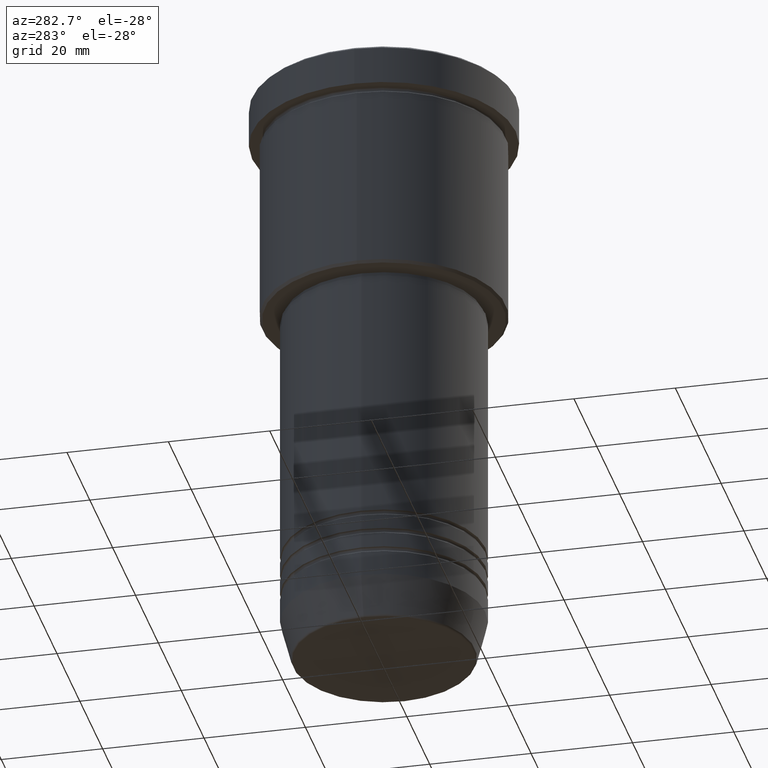
[diagram: clean part render]
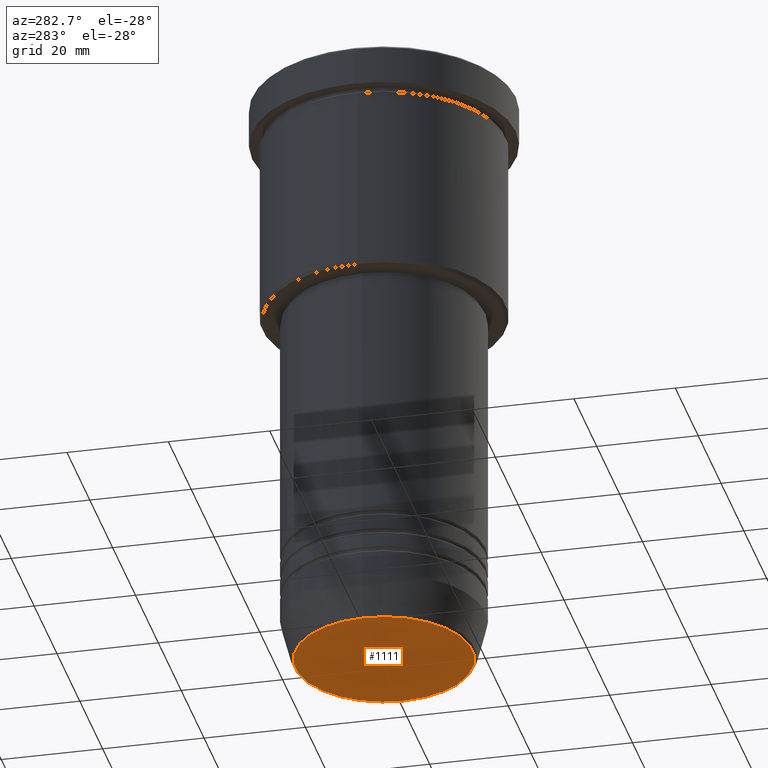
[diagram: same view with one face highlighted and labeled with its STEP entity id]
A machine part, auxiliary view. The second image highlights one B-rep face of the part: STEP entity #1111.
In plain terms, the highlighted planar face has unit normal (0, -0, 1).
Its self-contained STEP definition (entity closure, byte-faithful):
#1 = CARTESIAN_POINT ( 'NONE',  ( 0.000000000000000000, 0.000000000000000000, -120.0000000000000000 ) ) ;
#51 = ORIENTED_EDGE ( 'NONE', *, *, #681, .T. ) ;
#60 = EDGE_CURVE ( 'NONE', #954, #552, #176, .T. ) ;
#176 = CIRCLE ( 'NONE', #1153, 17.47274296656153325 ) ;
#194 = DIRECTION ( 'NONE',  ( 0.000000000000000000, -0.000000000000000000, 1.000000000000000000 ) ) ;
#217 = PLANE ( 'NONE',  #951 ) ;
#240 = DIRECTION ( 'NONE',  ( 1.000000000000000000, 0.000000000000000000, 0.000000000000000000 ) ) ;
#261 = DIRECTION ( 'NONE',  ( 1.000000000000000000, 0.000000000000000000, 0.000000000000000000 ) ) ;
#411 = CARTESIAN_POINT ( 'NONE',  ( -17.47274296656153325, 2.169366823916867714E-15, -120.0000000000000000 ) ) ;
#492 = CARTESIAN_POINT ( 'NONE',  ( 0.000000000000000000, 0.000000000000000000, -120.0000000000000000 ) ) ;
#509 = DIRECTION ( 'NONE',  ( 0.000000000000000000, 0.000000000000000000, -1.000000000000000000 ) ) ;
#519 = ORIENTED_EDGE ( 'NONE', *, *, #60, .T. ) ;
#552 = VERTEX_POINT ( 'NONE', #1181 ) ;
#681 = EDGE_CURVE ( 'NONE', #552, #954, #1141, .T. ) ;
#758 = CARTESIAN_POINT ( 'NONE',  ( 0.000000000000000000, 0.000000000000000000, -120.0000000000000000 ) ) ;
#836 = DIRECTION ( 'NONE',  ( 1.000000000000000000, 0.000000000000000000, 0.000000000000000000 ) ) ;
#871 = AXIS2_PLACEMENT_3D ( 'NONE', #492, #509, #240 ) ;
#951 = AXIS2_PLACEMENT_3D ( 'NONE', #758, #194, #836 ) ;
#954 = VERTEX_POINT ( 'NONE', #411 ) ;
#1017 = FACE_OUTER_BOUND ( 'NONE', #1093, .T. ) ;
#1091 = DIRECTION ( 'NONE',  ( 0.000000000000000000, 0.000000000000000000, -1.000000000000000000 ) ) ;
#1093 = EDGE_LOOP ( 'NONE', ( #51, #519 ) ) ;
#1111 = ADVANCED_FACE ( 'NONE', ( #1017 ), #217, .F. ) ;
#1141 = CIRCLE ( 'NONE', #871, 17.47274296656153325 ) ;
#1153 = AXIS2_PLACEMENT_3D ( 'NONE', #1, #1091, #261 ) ;
#1181 = CARTESIAN_POINT ( 'NONE',  ( 17.47274296656153325, 0.000000000000000000, -120.0000000000000000 ) ) ;